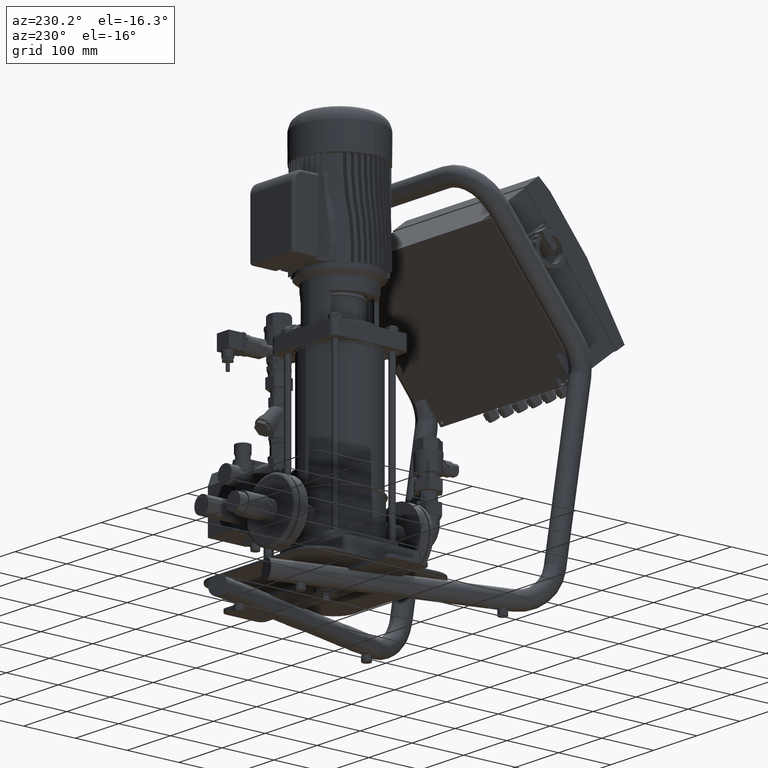
[diagram: clean part render]
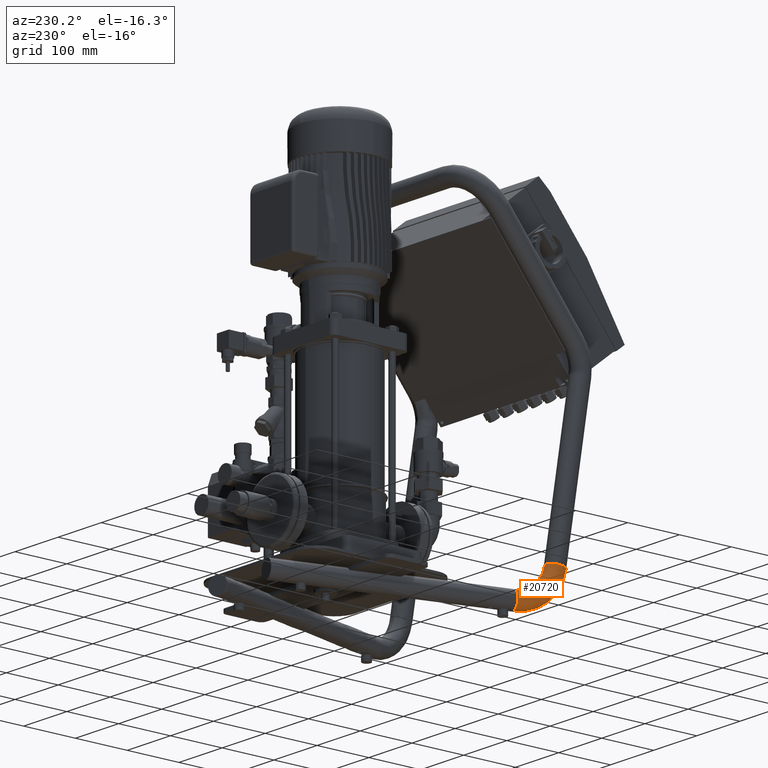
[diagram: same view with one face highlighted and labeled with its STEP entity id]
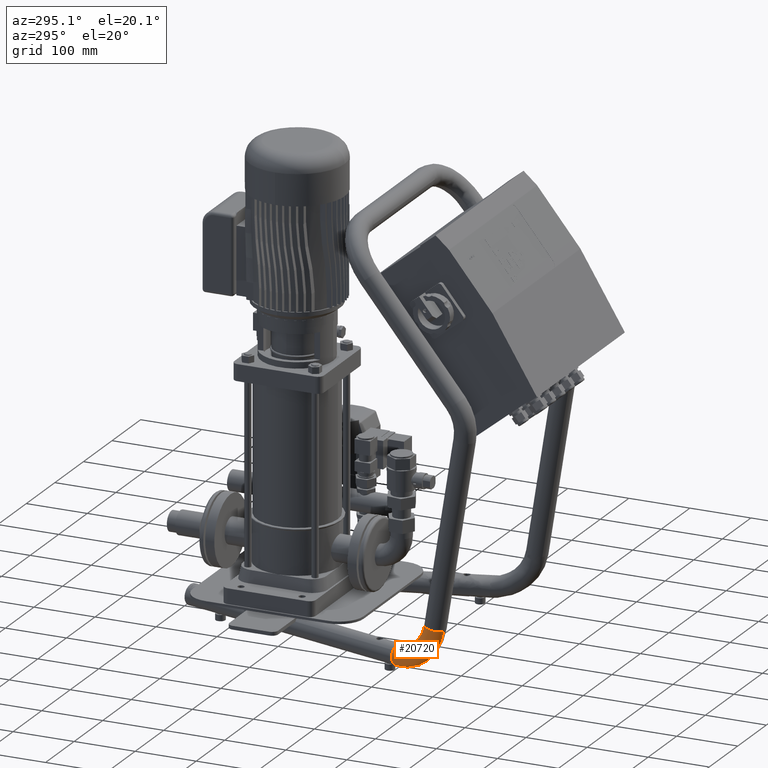
[diagram: same view with one face highlighted and labeled with its STEP entity id]
A machine part, auxiliary view. The second image highlights one B-rep face of the part: STEP entity #20720.
A second angle (auxiliary view) of the same face is appended — the face is thin or edge-on in the first view.
In plain terms, the highlighted toroidal blend (fillet) surface has major radius 70 mm and minor (blend) radius 16.85 mm.
Its self-contained STEP definition (entity closure, byte-faithful):
#20303=CARTESIAN_POINT('',(-163.030413514885030,-226.861370734471020,10.014593211557589));
#20304=VERTEX_POINT('',#20303);
#20305=CARTESIAN_POINT('',(-182.628831718109240,-310.504396899116050,83.682764651717491));
#20306=VERTEX_POINT('',#20305);
#20307=CARTESIAN_POINT('',(-159.543577432187480,-227.810925030337070,96.789375382252842));
#20308=DIRECTION('',(-0.964026530165460,0.262528983679465,0.041609877017014));
#20309=DIRECTION('',(0.043122434919920,4.027160E-017,0.999069795162769));
#20310=AXIS2_PLACEMENT_3D('',#20307,#20308,#20309);
#20311=CIRCLE('',#20310,86.849999999999966);
#20312=EDGE_CURVE('',#20304,#20306,#20311,.T.);
#20323=CARTESIAN_POINT('',(-161.677432789647180,-227.229821854455880,43.685406788442229));
#20324=VERTEX_POINT('',#20323);
#20332=CARTESIAN_POINT('',(-173.671168281890890,-278.417235103170700,88.768461619121524));
#20333=VERTEX_POINT('',#20332);
#20334=CARTESIAN_POINT('',(-159.543577432187480,-227.810925030337070,96.789375382252842));
#20335=DIRECTION('',(-0.964026530165460,0.262528983679465,0.041609877017014));
#20336=DIRECTION('',(0.043122434919920,-1.535473E-017,0.999069795162769));
#20337=AXIS2_PLACEMENT_3D('',#20334,#20335,#20336);
#20338=CIRCLE('',#20337,53.149999999999949);
#20339=EDGE_CURVE('',#20324,#20333,#20338,.T.);
#20453=CARTESIAN_POINT('',(-188.649805361013730,-281.444650685364080,88.288627399337770));
#20454=VERTEX_POINT('',#20453);
#20455=CARTESIAN_POINT('',(-178.150000000000060,-294.460816001143370,86.225613135419508));
#20456=DIRECTION('',(9.714451E-017,-0.156542257415441,0.987671261930445));
#20457=DIRECTION('',(0.623133849318317,-0.772472719037354,-0.122434080944705));
#20458=AXIS2_PLACEMENT_3D('',#20455,#20456,#20457);
#20459=CIRCLE('',#20458,16.850000000000009);
#20460=EDGE_CURVE('',#20333,#20454,#20459,.T.);
#20503=CARTESIAN_POINT('',(-175.090824931032730,-223.577013455118930,37.321999148426812));
#20504=VERTEX_POINT('',#20503);
#20511=CARTESIAN_POINT('',(-162.353923152266130,-227.045596294463450,26.849999999999909));
#20512=DIRECTION('',(-0.262756548183668,-0.964862164449723,4.857226E-016));
#20513=DIRECTION('',(0.755899215357069,-0.205850613610952,-0.621483628986767));
#20514=AXIS2_PLACEMENT_3D('',#20511,#20512,#20513);
#20515=CIRCLE('',#20514,16.850000000000012);
#20516=EDGE_CURVE('',#20324,#20504,#20515,.T.);
#20678=CARTESIAN_POINT('',(-162.353923152266130,-227.045596294463450,26.849999999999909));
#20679=DIRECTION('',(-0.262756548183668,-0.964862164449723,4.857226E-016));
#20680=DIRECTION('',(0.755899215357069,-0.205850613610952,-0.621483628986767));
#20681=AXIS2_PLACEMENT_3D('',#20678,#20679,#20680);
#20682=CIRCLE('',#20681,16.850000000000012);
#20683=EDGE_CURVE('',#20504,#20304,#20682,.T.);
#20701=CARTESIAN_POINT('',(-159.543577432187480,-227.810925030337070,96.789375382252842));
#20702=DIRECTION('',(0.964026530165460,-0.262528983679465,-0.041609877017014));
#20703=DIRECTION('',(0.043122434919920,-7.921463E-018,0.999069795162769));
#20704=AXIS2_PLACEMENT_3D('',#20701,#20702,#20703);
#20705=TOROIDAL_SURFACE('',#20704,69.999999999999972,16.850000000000009);
#20706=ORIENTED_EDGE('',*,*,#20312,.T.);
#20707=CARTESIAN_POINT('',(-178.150000000000060,-294.460816001143370,86.225613135419508));
#20708=DIRECTION('',(9.714451E-017,-0.156542257415441,0.987671261930445));
#20709=DIRECTION('',(0.623133849318317,-0.772472719037354,-0.122434080944705));
#20710=AXIS2_PLACEMENT_3D('',#20707,#20708,#20709);
#20711=CIRCLE('',#20710,16.850000000000009);
#20712=EDGE_CURVE('',#20454,#20306,#20711,.T.);
#20713=ORIENTED_EDGE('',*,*,#20712,.F.);
#20714=ORIENTED_EDGE('',*,*,#20460,.F.);
#20715=ORIENTED_EDGE('',*,*,#20339,.F.);
#20716=ORIENTED_EDGE('',*,*,#20516,.T.);
#20717=ORIENTED_EDGE('',*,*,#20683,.T.);
#20718=EDGE_LOOP('',(#20706,#20713,#20714,#20715,#20716,#20717));
#20719=FACE_OUTER_BOUND('',#20718,.T.);
#20720=ADVANCED_FACE('',(#20719),#20705,.T.);